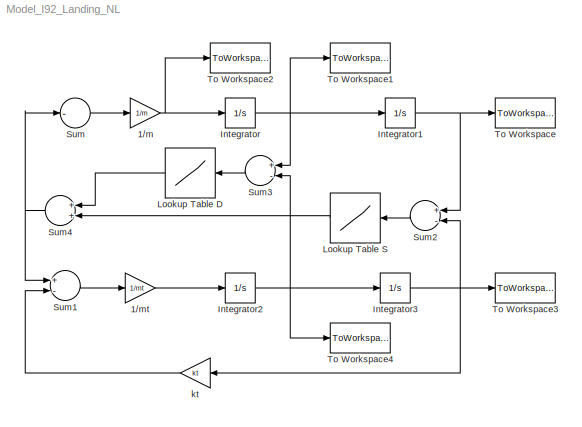
MODEL Model_I92_Landing_NL
KIND model
BLOCK [Gain] 1//m
  Gain = 1/m
BLOCK [Gain] 1//mt
  Gain = 1/mt
BLOCK [Integrator] Integrator
  IgnoreLimit = off
  InitialCondition = W_e
  Ports = [1, 1]
BLOCK [Integrator] Integrator1
  IgnoreLimit = off
  Ports = [1, 1]
BLOCK [Integrator] Integrator2
  IgnoreLimit = off
  InitialCondition = W_e
  Ports = [1, 1]
BLOCK [Integrator] Integrator3
  IgnoreLimit = off
  Ports = [1, 1]
BLOCK [Lookup] Lookup Table D
  InputValues = zdot
  OutputValues = Fdamp
  SaturateOnIntegerOverflow = off
BLOCK [Lookup] Lookup Table S
  InputValues = z
  OutputValues = Fd
  SaturateOnIntegerOverflow = off
BLOCK [Sum] Sum
  InputSameDT = off
  Inputs = -
  OutDataTypeMode = Inherit via internal rule
  Ports = [1, 1]
BLOCK [Sum] Sum1
  InputSameDT = off
  Inputs = +-
  OutDataTypeMode = Inherit via internal rule
  Ports = [2, 1]
BLOCK [Sum] Sum2
  InputSameDT = off
  Inputs = +-
  OutDataTypeMode = Inherit via internal rule
  Ports = [2, 1]
BLOCK [Sum] Sum3
  InputSameDT = off
  Inputs = +-
  OutDataTypeMode = Inherit via internal rule
  Ports = [2, 1]
BLOCK [Sum] Sum4
  InputSameDT = off
  OutDataTypeMode = Inherit via internal rule
  Ports = [2, 1]
BLOCK [ToWorkspace] To Workspace
  MaxDataPoints = inf
  SampleTime = dt
  SaveFormat = Array
  VariableName = out_dispnl
BLOCK [ToWorkspace] To Workspace1
  MaxDataPoints = inf
  SampleTime = dt
  SaveFormat = Array
  VariableName = out_ratenl
BLOCK [ToWorkspace] To Workspace2
  MaxDataPoints = inf
  SampleTime = dt
  SaveFormat = Array
  VariableName = out_accnl
BLOCK [ToWorkspace] To Workspace3
  MaxDataPoints = inf
  SampleTime = dt
  SaveFormat = Array
  VariableName = out_dispnlt
BLOCK [ToWorkspace] To Workspace4
  MaxDataPoints = inf
  SampleTime = dt
  SaveFormat = Array
  VariableName = out_ratenlt
BLOCK [Gain] kt
  Gain = kt
NET 1//m:1 -> Integrator:1, To Workspace2:1
LINE 1//mt:1 -> Integrator2:1
NET Integrator1:1 -> Sum2:1, To Workspace:1
NET Integrator2:1 -> Integrator3:1, Sum3:2, To Workspace4:1
NET Integrator3:1 -> Sum2:2, To Workspace3:1, kt:1
NET Integrator:1 -> Integrator1:1, Sum3:1, To Workspace1:1
LINE Lookup Table D:1 -> Sum4:1
LINE Lookup Table S:1 -> Sum4:2
LINE Sum1:1 -> 1//mt:1
LINE Sum2:1 -> Lookup Table S:1
LINE Sum3:1 -> Lookup Table D:1
NET Sum4:1 -> Sum1:1, Sum:1
LINE Sum:1 -> 1//m:1
LINE kt:1 -> Sum1:2
note: NET lines group one-source signal fan-out (src -> all destinations, sorted); 1:1 wires keep LINE
